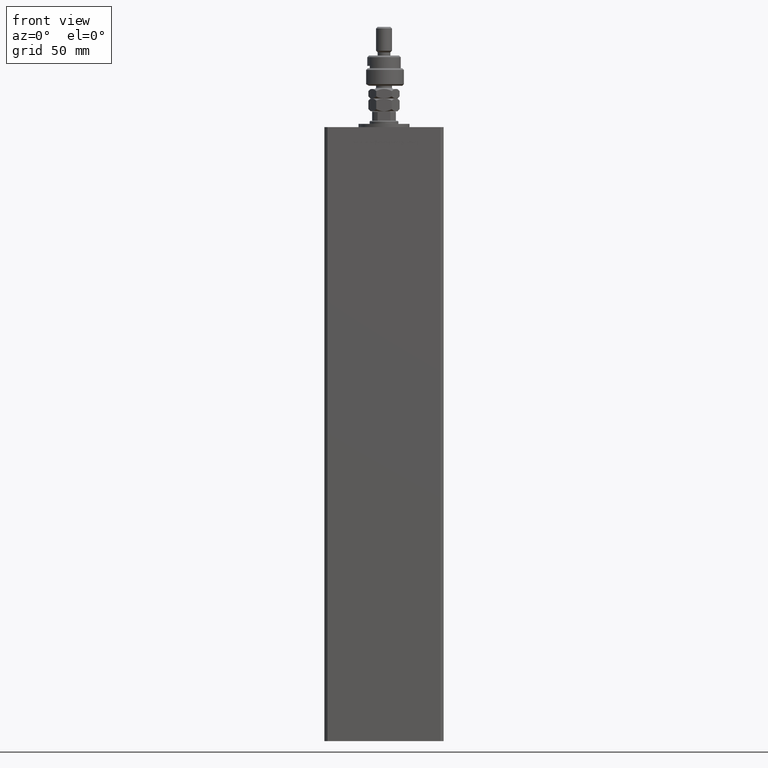
[diagram: clean part render]
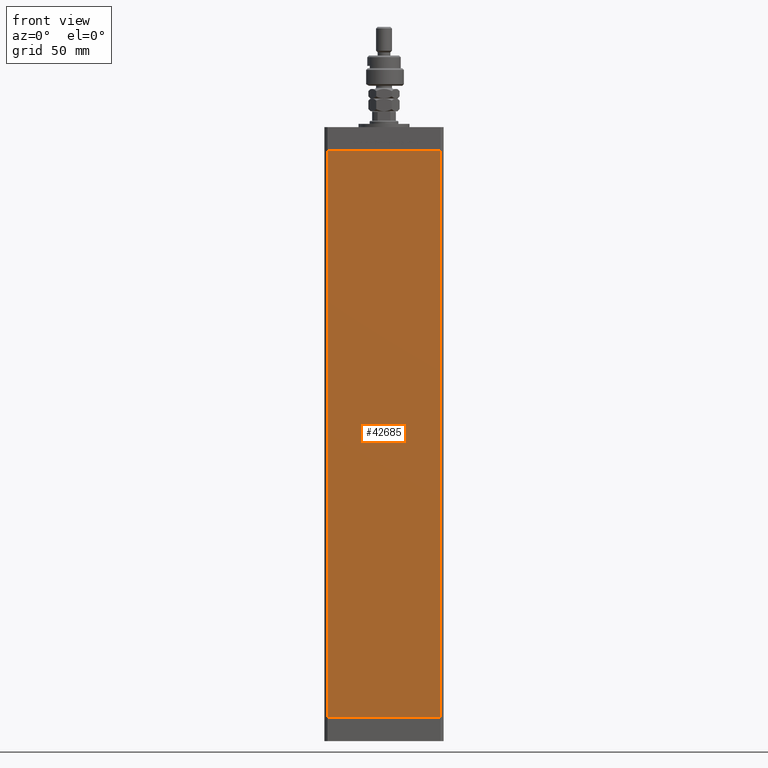
[diagram: same view with one face highlighted and labeled with its STEP entity id]
A machine part, front view. The second image highlights one B-rep face of the part: STEP entity #42685.
In plain terms, the highlighted planar face has unit normal (0, 1, 0).
Its self-contained STEP definition (entity closure, byte-faithful):
#1350 = AXIS2_PLACEMENT_3D ( 'NONE', #42454, #20392, #41379 ) ;
#3675 = LINE ( 'NONE', #53647, #22172 ) ;
#4813 = ORIENTED_EDGE ( 'NONE', *, *, #20804, .T. ) ;
#8496 = VECTOR ( 'NONE', #38999, 1000.000000000000000 ) ;
#8537 = LINE ( 'NONE', #26197, #54577 ) ;
#9381 = VERTEX_POINT ( 'NONE', #36798 ) ;
#20392 = DIRECTION ( 'NONE',  ( 0.000000000000000000, 1.000000000000000000, 0.000000000000000000 ) ) ;
#20804 = EDGE_CURVE ( 'NONE', #9381, #23984, #8537, .T. ) ;
#22172 = VECTOR ( 'NONE', #48944, 1000.000000000000000 ) ;
#23984 = VERTEX_POINT ( 'NONE', #50657 ) ;
#24368 = ORIENTED_EDGE ( 'NONE', *, *, #31395, .F. ) ;
#24816 = PLANE ( 'NONE',  #1350 ) ;
#26197 = CARTESIAN_POINT ( 'NONE',  ( -35.49999999999999289, -32.50000000000000000, 356.0000000000000000 ) ) ;
#26583 = LINE ( 'NONE', #34573, #8496 ) ;
#29595 = EDGE_CURVE ( 'NONE', #45069, #40180, #44373, .T. ) ;
#31395 = EDGE_CURVE ( 'NONE', #9381, #45069, #3675, .T. ) ;
#32504 = CARTESIAN_POINT ( 'NONE',  ( 35.49999999999999289, -32.50000000000000000, 356.0000000000000000 ) ) ;
#34319 = CARTESIAN_POINT ( 'NONE',  ( 35.49999999999999289, -32.50000000000000000, 356.0000000000000000 ) ) ;
#34573 = CARTESIAN_POINT ( 'NONE',  ( -35.49999999999999289, -32.50000000000000000, 0.000000000000000000 ) ) ;
#35306 = EDGE_LOOP ( 'NONE', ( #37374, #37399, #24368, #4813 ) ) ;
#36798 = CARTESIAN_POINT ( 'NONE',  ( -35.49999999999999289, -32.50000000000000000, 356.0000000000000000 ) ) ;
#37374 = ORIENTED_EDGE ( 'NONE', *, *, #42012, .T. ) ;
#37399 = ORIENTED_EDGE ( 'NONE', *, *, #29595, .F. ) ;
#37656 = CARTESIAN_POINT ( 'NONE',  ( 35.49999999999999289, -32.50000000000000000, 0.000000000000000000 ) ) ;
#37972 = VECTOR ( 'NONE', #53478, 1000.000000000000000 ) ;
#38999 = DIRECTION ( 'NONE',  ( 1.000000000000000000, 0.000000000000000000, 0.000000000000000000 ) ) ;
#40180 = VERTEX_POINT ( 'NONE', #37656 ) ;
#41379 = DIRECTION ( 'NONE',  ( 0.000000000000000000, -0.000000000000000000, 1.000000000000000000 ) ) ;
#42012 = EDGE_CURVE ( 'NONE', #23984, #40180, #26583, .T. ) ;
#42454 = CARTESIAN_POINT ( 'NONE',  ( -35.49999999999999289, -32.50000000000000000, 356.0000000000000000 ) ) ;
#42685 = ADVANCED_FACE ( 'NONE', ( #50747 ), #24816, .F. ) ;
#44373 = LINE ( 'NONE', #32504, #37972 ) ;
#45069 = VERTEX_POINT ( 'NONE', #34319 ) ;
#48944 = DIRECTION ( 'NONE',  ( 1.000000000000000000, 0.000000000000000000, 0.000000000000000000 ) ) ;
#50657 = CARTESIAN_POINT ( 'NONE',  ( -35.49999999999999289, -32.50000000000000000, 0.000000000000000000 ) ) ;
#50747 = FACE_OUTER_BOUND ( 'NONE', #35306, .T. ) ;
#51327 = DIRECTION ( 'NONE',  ( -0.000000000000000000, -0.000000000000000000, -1.000000000000000000 ) ) ;
#53478 = DIRECTION ( 'NONE',  ( -0.000000000000000000, -0.000000000000000000, -1.000000000000000000 ) ) ;
#53647 = CARTESIAN_POINT ( 'NONE',  ( -35.49999999999999289, -32.50000000000000000, 356.0000000000000000 ) ) ;
#54577 = VECTOR ( 'NONE', #51327, 1000.000000000000000 ) ;